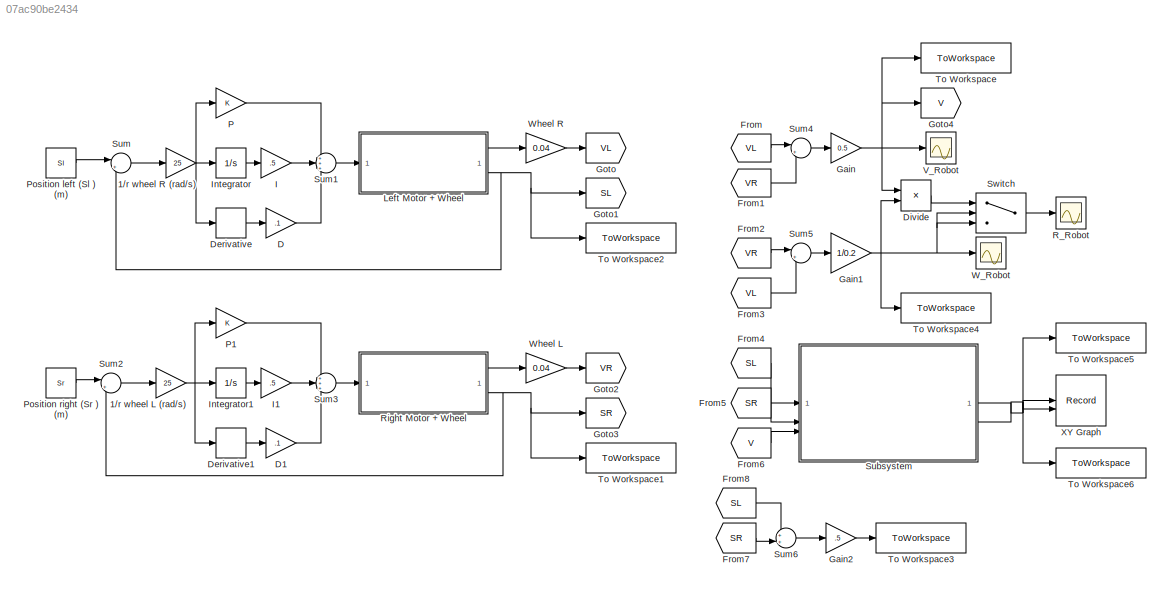
MODEL slx_07ac90be2434
KIND model
CONFIG AbsTol = auto
CONFIG EnableMultiTasking = off
CONFIG FixedStep = auto
CONFIG MaxStep = auto
CONFIG MinStep = auto
CONFIG RelTol = 1e-3
CONFIG SampleTimeConstraint = Unconstrained
CONFIG SolverName = VariableStepAuto
CONFIG StartTime = 0.0
CONFIG StopTime = 10
BLOCK [Gain] 1//r wheel L (rad//s)
  Gain = 25
BLOCK [Gain] 1//r wheel R (rad//s)
  Gain = 25
BLOCK [Gain] D
  Gain = .1
BLOCK [Gain] D1
  Gain = .1
BLOCK [Derivative] Derivative
BLOCK [Derivative] Derivative1
BLOCK [Product] Divide
  Inputs = */
BLOCK [From] From
  GotoTag = VL
BLOCK [From] From1
  GotoTag = VR
BLOCK [From] From2
  GotoTag = VR
BLOCK [From] From3
  GotoTag = VL
BLOCK [From] From4
  GotoTag = SL
BLOCK [From] From5
  GotoTag = SR
BLOCK [From] From6
  GotoTag = V
BLOCK [From] From7
  GotoTag = SR
BLOCK [From] From8
  GotoTag = SL
BLOCK [Gain] Gain
  Gain = 0.5
BLOCK [Gain] Gain1
  Gain = 1/0.2
BLOCK [Gain] Gain2
  Gain = .5
BLOCK [Goto] Goto
  GotoTag = VL
BLOCK [Goto] Goto1
  GotoTag = SL
BLOCK [Goto] Goto2
  GotoTag = VR
BLOCK [Goto] Goto3
  GotoTag = SR
BLOCK [Goto] Goto4
  GotoTag = V
BLOCK [Gain] I
  Gain = .5
BLOCK [Gain] I1
  Gain = .5
BLOCK [Integrator] Integrator
BLOCK [Integrator] Integrator1
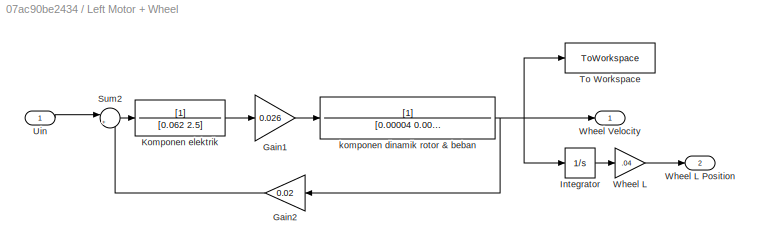
BLOCK [SubSystem] Left Motor + Wheel
BLOCK [Gain] Left Motor + Wheel/Gain1
  Gain = 0.026
BLOCK [Gain] Left Motor + Wheel/Gain2
  Gain = 0.02
BLOCK [Integrator] Left Motor + Wheel/Integrator
BLOCK [TransferFcn] Left Motor + Wheel/Komponen elektrik
  Denominator = [0.062 2.5]
BLOCK [Sum] Left Motor + Wheel/Sum2
  Inputs = |+-
BLOCK [ToWorkspace] Left Motor + Wheel/To Workspace
  FixptAsFi = on
  MaxDataPoints = inf
  SampleTime = -1
  SaveFormat = Timeseries
  VariableName = wheel_velL
BLOCK [Inport] Left Motor + Wheel/Uin
BLOCK [Gain] Left Motor + Wheel/Wheel L
  Gain = .04
BLOCK [Outport] Left Motor + Wheel/Wheel L Position
  Port = 2
BLOCK [Outport] Left Motor + Wheel/Wheel Velocity
BLOCK [TransferFcn] Left Motor + Wheel/komponen dinamik rotor & beban
  Denominator = [0.00004 0.001]
BLOCK [Gain] P
BLOCK [Gain] P1
BLOCK [Constant] Position left (Sl ) (m)
  Value = Sl
BLOCK [Constant] Position right (Sr ) (m)
  Value = Sr
BLOCK [Scope] R_Robot
  Floating = off
  NumInputPorts = 1
  ScopeSpecificationString = Simulink.scopes.TimeScopeBlockCfg('CurrentConfiguration', extmgr.ConfigurationSet(extmgr.Configuration('Core','General UI',true),extmgr.Configuration('Core','Source UI',true),extmgr.Configuration('Sources','WiredSimulink',true,'DataLoggingVariableName','ScopeData2'),extmgr.Configuration('Visuals','Time Domain',true,'SerializedDisplays',{struct('MinYLimReal','-1.12509','MaxYLimReal','0.12501','YLab...<+1947ch>
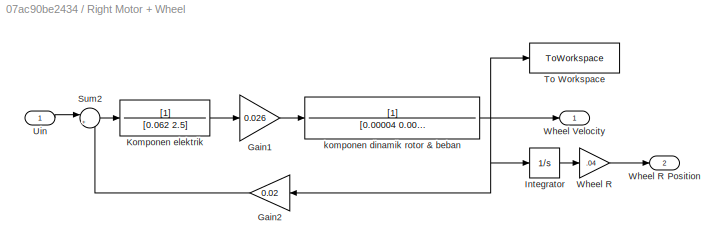
BLOCK [SubSystem] Right Motor + Wheel
BLOCK [Gain] Right Motor + Wheel/Gain1
  Gain = 0.026
BLOCK [Gain] Right Motor + Wheel/Gain2
  Gain = 0.02
BLOCK [Integrator] Right Motor + Wheel/Integrator
BLOCK [TransferFcn] Right Motor + Wheel/Komponen elektrik
  Denominator = [0.062 2.5]
BLOCK [Sum] Right Motor + Wheel/Sum2
  Inputs = |+-
BLOCK [ToWorkspace] Right Motor + Wheel/To Workspace
  FixptAsFi = on
  MaxDataPoints = inf
  SampleTime = -1
  SaveFormat = Timeseries
  VariableName = wheel_velR
BLOCK [Inport] Right Motor + Wheel/Uin
BLOCK [Gain] Right Motor + Wheel/Wheel R
  Gain = .04
BLOCK [Outport] Right Motor + Wheel/Wheel R Position
  Port = 2
BLOCK [Outport] Right Motor + Wheel/Wheel Velocity
BLOCK [TransferFcn] Right Motor + Wheel/komponen dinamik rotor & beban
  Denominator = [0.00004 0.001]
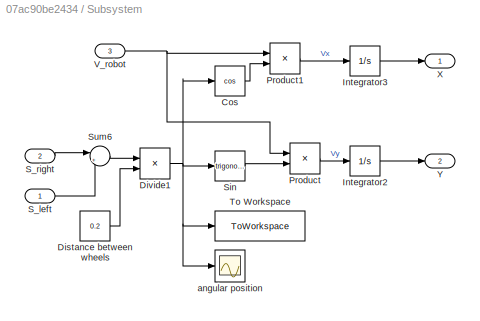
BLOCK [SubSystem] Subsystem
BLOCK [Trigonometry] Subsystem/Cos
  Operator = cos
BLOCK [Constant] Subsystem/Distance between wheels
  Value = 0.2
BLOCK [Product] Subsystem/Divide1
  Inputs = */
BLOCK [Integrator] Subsystem/Integrator2
BLOCK [Integrator] Subsystem/Integrator3
BLOCK [Product] Subsystem/Product
BLOCK [Product] Subsystem/Product1
BLOCK [Inport] Subsystem/S_left
BLOCK [Inport] Subsystem/S_right
  Port = 2
BLOCK [Trigonometry] Subsystem/Sin
BLOCK [Sum] Subsystem/Sum6
  Inputs = |+-
BLOCK [ToWorkspace] Subsystem/To Workspace
  FixptAsFi = on
  MaxDataPoints = inf
  SampleTime = -1
  SaveFormat = Timeseries
  VariableName = theta
BLOCK [Inport] Subsystem/V_robot
  Port = 3
BLOCK [Outport] Subsystem/X
BLOCK [Outport] Subsystem/Y
  Port = 2
BLOCK [Scope] Subsystem/angular position
  Floating = off
  NumInputPorts = 1
  ScopeSpecificationString = Simulink.scopes.TimeScopeBlockCfg('CurrentConfiguration', extmgr.ConfigurationSet(extmgr.Configuration('Core','General UI',true),extmgr.Configuration('Core','Source UI',true),extmgr.Configuration('Sources','WiredSimulink',true,'DataLoggingVariableName','ScopeData1'),extmgr.Configuration('Visuals','Time Domain',true,'SerializedDisplays',{struct('MinYLimReal','-11.23134','MaxYLimReal','1.24793','YLa...<+1398ch>
BLOCK [Sum] Sum
  Inputs = |+-
BLOCK [Sum] Sum1
  Inputs = +++
BLOCK [Sum] Sum2
  Inputs = |+-
BLOCK [Sum] Sum3
  Inputs = +++
BLOCK [Sum] Sum4
  Inputs = |++
BLOCK [Sum] Sum5
  Inputs = |+-
BLOCK [Sum] Sum6
  Inputs = ++|
BLOCK [Switch] Switch
  Criteria = u2 > Threshold
  InputSameDT = off
  SaturateOnIntegerOverflow = off
BLOCK [ToWorkspace] To Workspace
  FixptAsFi = on
  MaxDataPoints = inf
  SampleTime = -1
  SaveFormat = Timeseries
  VariableName = vel
BLOCK [ToWorkspace] To Workspace1
  FixptAsFi = on
  MaxDataPoints = inf
  SampleTime = -1
  SaveFormat = Timeseries
  VariableName = wheel_sR
BLOCK [ToWorkspace] To Workspace2
  FixptAsFi = on
  MaxDataPoints = inf
  SampleTime = -1
  SaveFormat = Timeseries
  VariableName = wheel_sL
BLOCK [ToWorkspace] To Workspace3
  FixptAsFi = on
  MaxDataPoints = inf
  SampleTime = -1
  SaveFormat = Timeseries
  VariableName = s
BLOCK [ToWorkspace] To Workspace4
  FixptAsFi = on
  MaxDataPoints = inf
  SampleTime = -1
  SaveFormat = Timeseries
  VariableName = omega
BLOCK [ToWorkspace] To Workspace5
  FixptAsFi = on
  MaxDataPoints = inf
  SampleTime = -1
  Save2DSignal = 2-D array (concatenate along first dimension)
  VariableName = X
BLOCK [ToWorkspace] To Workspace6
  FixptAsFi = on
  MaxDataPoints = inf
  SampleTime = -1
  VariableName = Y
BLOCK [Scope] V_Robot
  Floating = off
  NumInputPorts = 1
  ScopeSpecificationString = Simulink.scopes.TimeScopeBlockCfg('CurrentConfiguration', extmgr.ConfigurationSet(extmgr.Configuration('Core','General UI',true),extmgr.Configuration('Core','Source UI',true),extmgr.Configuration('Sources','WiredSimulink',true),extmgr.Configuration('Visuals','Time Domain',true,'SerializedDisplays',{struct('MinYLimReal','-0.92224','MaxYLimReal','7.77807','YLabelReal','','MinYLimMag','0.00000','MaxY...<+1349ch>
BLOCK [Scope] W_Robot
  Floating = off
  NumInputPorts = 1
  ScopeSpecificationString = Simulink.scopes.TimeScopeBlockCfg('CurrentConfiguration', extmgr.ConfigurationSet(extmgr.Configuration('Core','General UI',true),extmgr.Configuration('Core','Source UI',true),extmgr.Configuration('Sources','WiredSimulink',true,'DataLoggingVariableName','ScopeData1'),extmgr.Configuration('Visuals','Time Domain',true,'SerializedDisplays',{struct('MinYLimReal','-3.07413','MaxYLimReal','25.92691','YLa...<+1392ch>
BLOCK [Gain] Wheel L
  Gain = 0.04
BLOCK [Gain] Wheel R
  Gain = 0.04
BLOCK [Record] XY Graph
  CompatibilityTag = XY
  FileSettingsInternal = {"entries":[{"content":{"excelSettings":{"content":{},"type":"Streamout.ExcelSettings"}},"type":"Streamout.FileSettingStorage","uuid":""}],"packageUris":["http:\/\/schema.mathworks.com\/mf0\/streamout_blocks\/R2020a"],"version":"1.0"}
  Layout = [1 1]
  SignalsInternal = {"entries":[{"content":{"signals":[{"content":{"blockPath":[],"dimensions":[1],"domain":"","lineColor":"#64d413","plots":[1],"port":1,"signalID":8,"signalName":"Subsystem:1"},"type":"RecordBlkView.Signal","uuid":""},{"content":{"blockPath":[],"dimensions":[1],"domain":"","lineColor":"#ff13a6","plots":[1],"port":2,"signalID":11,"signalName":"Subsystem:2"},"type":"RecordBlkView.Signal","uuid":""}]},...<+143ch>
  VisualizationBindings = {"xyplotplugin":{"info":[{"series":[{"bindingParametersList":[{"parameter":"X-Axis","signalID":8,"signalName":"Subsystem:1"},{"parameter":"Y-Axis","signalID":11,"signalName":"Subsystem:2"}],"seriesID":56256}],"subplotID":1}]}}
NET 1//r wheel L (rad//s):1 -> Derivative1:1, Integrator1:1, P1:1
NET 1//r wheel R (rad//s):1 -> Derivative:1, Integrator:1, P:1
LINE D1:1 -> Sum3:3
LINE D:1 -> Sum1:3
LINE Derivative1:1 -> D1:1
LINE Derivative:1 -> D:1
LINE Divide:1 -> Switch:1
LINE From1:1 -> Sum4:2
LINE From2:1 -> Sum5:1
LINE From3:1 -> Sum5:2
LINE From4:1 -> Subsystem:1
LINE From5:1 -> Subsystem:2
LINE From6:1 -> Subsystem:3
LINE From7:1 -> Sum6:2
LINE From8:1 -> Sum6:1
LINE From:1 -> Sum4:1
NET Gain1:1 -> Divide:2, Switch:2, Switch:3, To Workspace4:1, W_Robot:1
LINE Gain2:1 -> To Workspace3:1
NET Gain:1 -> Divide:1, Goto4:1, To Workspace:1, V_Robot:1
LINE I1:1 -> Sum3:2
LINE I:1 -> Sum1:2
LINE Integrator1:1 -> I1:1
LINE Integrator:1 -> I:1
LINE Left Motor + Wheel/Gain1:1 -> Left Motor + Wheel/komponen dinamik rotor & beban:1
LINE Left Motor + Wheel/Gain2:1 -> Left Motor + Wheel/Sum2:2
LINE Left Motor + Wheel/Integrator:1 -> Left Motor + Wheel/Wheel L:1
LINE Left Motor + Wheel/Komponen elektrik:1 -> Left Motor + Wheel/Gain1:1
LINE Left Motor + Wheel/Sum2:1 -> Left Motor + Wheel/Komponen elektrik:1
LINE Left Motor + Wheel/Uin:1 -> Left Motor + Wheel/Sum2:1
LINE Left Motor + Wheel/Wheel L:1 -> Left Motor + Wheel/Wheel L Position:1
NET Left Motor + Wheel/komponen dinamik rotor & beban:1 -> Left Motor + Wheel/Gain2:1, Left Motor + Wheel/Integrator:1, Left Motor + Wheel/To Workspace:1, Left Motor + Wheel/Wheel Velocity:1
LINE Left Motor + Wheel:1 -> Wheel R:1
NET Left Motor + Wheel:2 -> Goto1:1, Sum:2, To Workspace2:1
LINE P1:1 -> Sum3:1
LINE P:1 -> Sum1:1
LINE Position left (Sl ) (m):1 -> Sum:1
LINE Position right (Sr ) (m):1 -> Sum2:1
LINE Right Motor + Wheel/Gain1:1 -> Right Motor + Wheel/komponen dinamik rotor & beban:1
LINE Right Motor + Wheel/Gain2:1 -> Right Motor + Wheel/Sum2:2
LINE Right Motor + Wheel/Integrator:1 -> Right Motor + Wheel/Wheel R:1
LINE Right Motor + Wheel/Komponen elektrik:1 -> Right Motor + Wheel/Gain1:1
LINE Right Motor + Wheel/Sum2:1 -> Right Motor + Wheel/Komponen elektrik:1
LINE Right Motor + Wheel/Uin:1 -> Right Motor + Wheel/Sum2:1
LINE Right Motor + Wheel/Wheel R:1 -> Right Motor + Wheel/Wheel R Position:1
NET Right Motor + Wheel/komponen dinamik rotor & beban:1 -> Right Motor + Wheel/Gain2:1, Right Motor + Wheel/Integrator:1, Right Motor + Wheel/To Workspace:1, Right Motor + Wheel/Wheel Velocity:1
LINE Right Motor + Wheel:1 -> Wheel L:1
NET Right Motor + Wheel:2 -> Goto3:1, Sum2:2, To Workspace1:1
LINE Subsystem/Cos:1 -> Subsystem/Product1:2
LINE Subsystem/Distance between wheels:1 -> Subsystem/Divide1:2
NET Subsystem/Divide1:1 -> Subsystem/Cos:1, Subsystem/Sin:1, Subsystem/To Workspace:1, Subsystem/angular position:1
LINE Subsystem/Integrator2:1 -> Subsystem/Y:1
LINE Subsystem/Integrator3:1 -> Subsystem/X:1
LINE Subsystem/Product1:1 -> Subsystem/Integrator3:1
LINE Subsystem/Product:1 -> Subsystem/Integrator2:1
LINE Subsystem/S_left:1 -> Subsystem/Sum6:2
LINE Subsystem/S_right:1 -> Subsystem/Sum6:1
LINE Subsystem/Sin:1 -> Subsystem/Product:2
LINE Subsystem/Sum6:1 -> Subsystem/Divide1:1
NET Subsystem/V_robot:1 -> Subsystem/Product1:1, Subsystem/Product:1
NET Subsystem:1 -> To Workspace5:1, XY Graph:1
NET Subsystem:2 -> To Workspace6:1, XY Graph:2
LINE Sum1:1 -> Left Motor + Wheel:1
LINE Sum2:1 -> 1//r wheel L (rad//s):1
LINE Sum3:1 -> Right Motor + Wheel:1
LINE Sum4:1 -> Gain:1
LINE Sum5:1 -> Gain1:1
LINE Sum6:1 -> Gain2:1
LINE Sum:1 -> 1//r wheel R (rad//s):1
LINE Switch:1 -> R_Robot:1
LINE Wheel L:1 -> Goto2:1
LINE Wheel R:1 -> Goto:1
note: NET lines group one-source signal fan-out (src -> all destinations, sorted); 1:1 wires keep LINE
